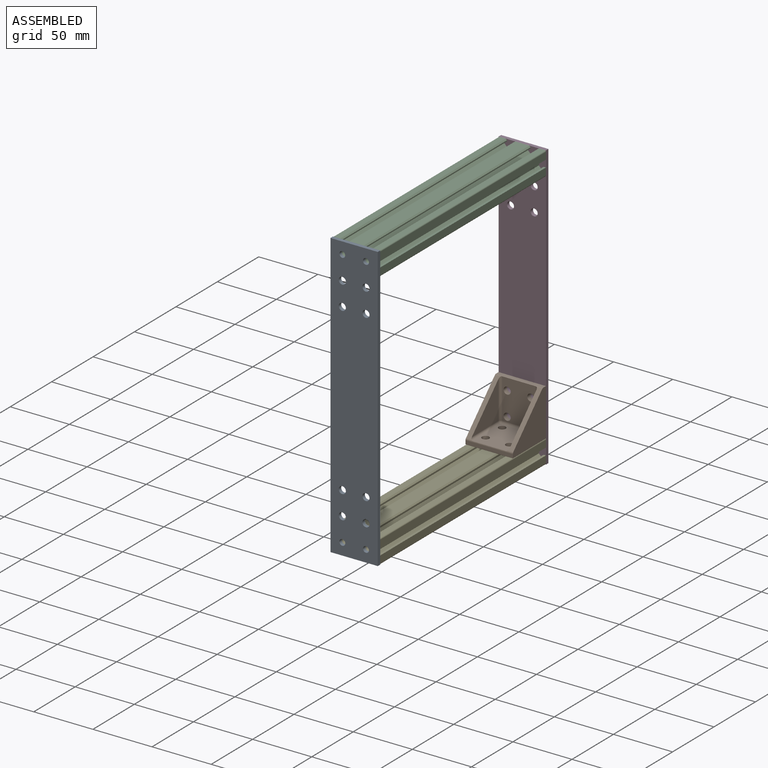
[diagram: assembled view]
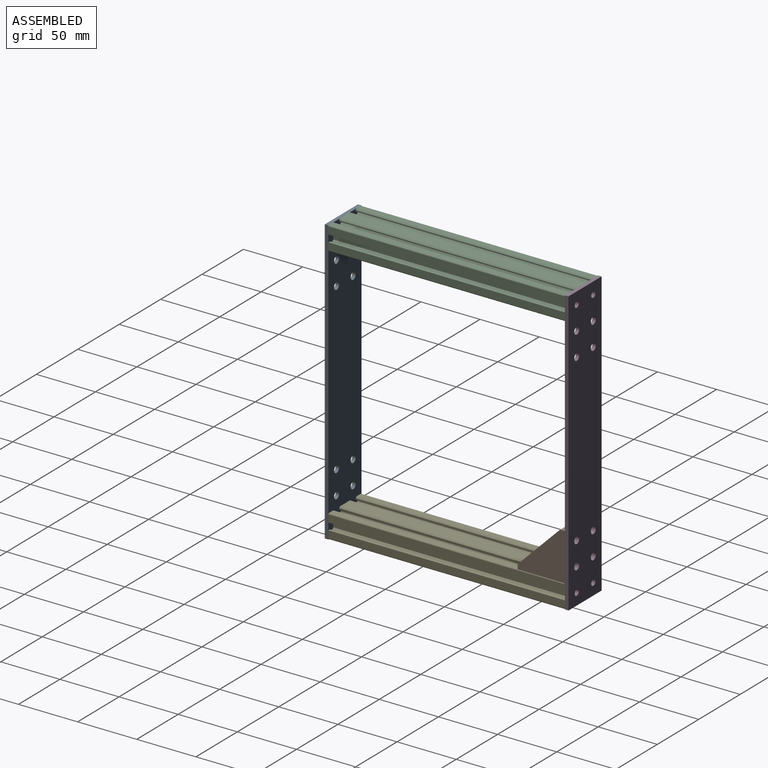
[diagram: assembled view, second angle]
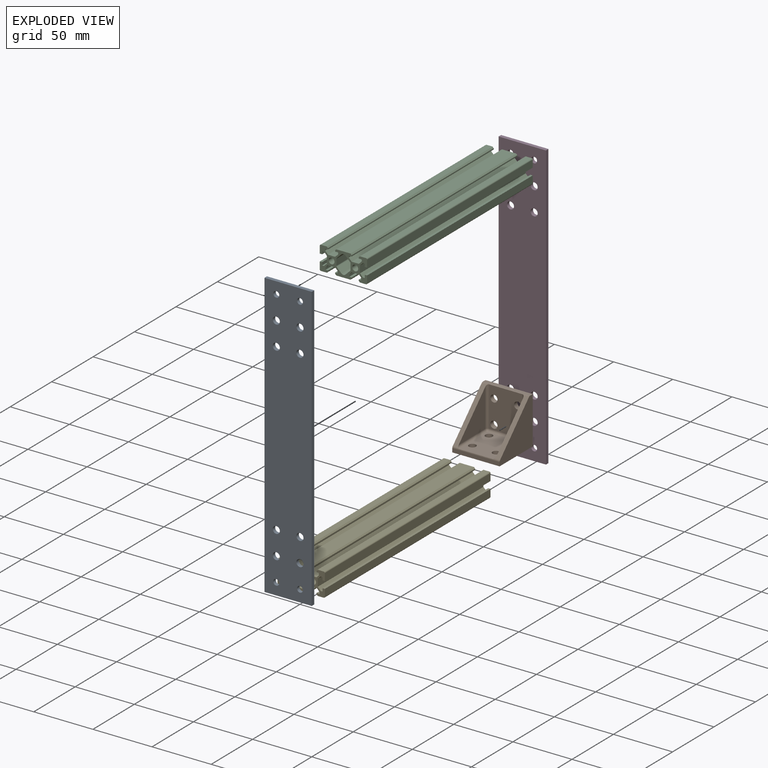
[diagram: exploded view]
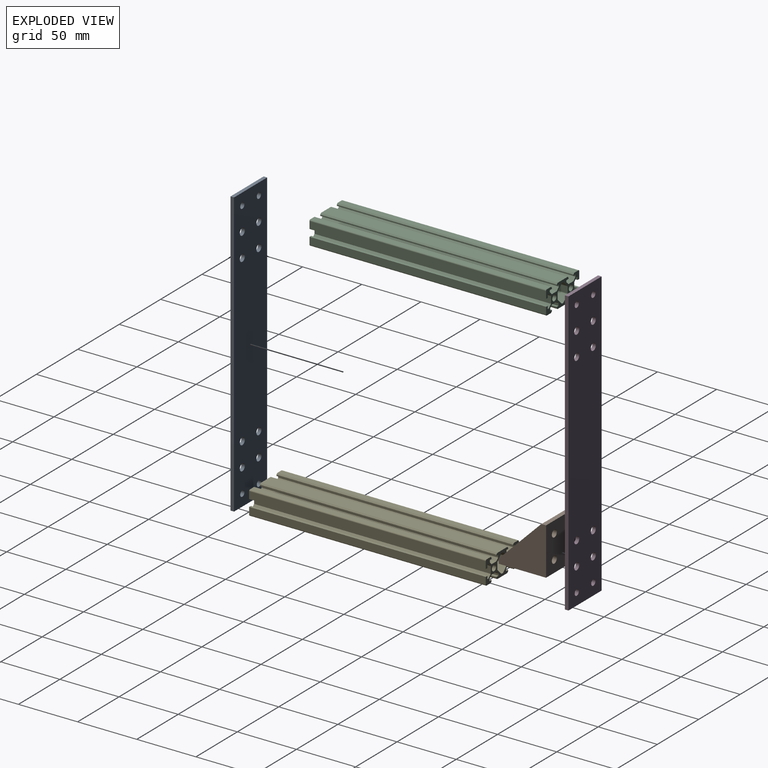
[diagram: exploded view, second angle]
ASSEMBLY  parts=5 mates=6
PART A: 18 faces, bbox 240x3x40 mm
  f0: plane 240x40mm, normal (0,-1,0), area 9295.3mm2, adj f1,f2,f3,f4,f6,f7,f8,f9
  f1: plane 240x3mm, normal (0,0,-1), area 720mm2, adj f0,f2,f4,f5
  f2: plane 40x3mm, normal (1,0,0), area 120mm2, adj f0,f1,f3,f5
  f3: plane 240x3mm, normal (0,0,1), area 720mm2, adj f0,f2,f4,f5
  f4: plane 40x3mm, normal (-1,0,0), area 120mm2, adj f0,f1,f3,f5
  f5: plane 240x40mm, normal (0,1,0), area 9295.3mm2, adj f1,f2,f3,f4,f6,f7,f8,f9
  f6: cylinder r=2.5mm len=5mm, axis (0,-1,0), area 47.1mm2, adj f0,f5
  f7: cylinder r=2.5mm len=5mm, axis (0,-1,0), area 47.1mm2, adj f0,f5
  f8: cylinder r=2.5mm len=5mm, axis (0,-1,0), area 47.1mm2, adj f0,f5
  f9: cylinder r=2.5mm len=5mm, axis (0,-1,0), area 47.1mm2, adj f0,f5
  f10: cylinder r=3mm len=6mm, axis (0,-1,0), area 56.5mm2, adj f0,f5
  f11: cylinder r=3mm len=6mm, axis (0,-1,0), area 56.5mm2, adj f0,f5
  f12: cylinder r=3mm len=6mm, axis (0,-1,0), area 56.5mm2, adj f0,f5
  f13: cylinder r=3mm len=6mm, axis (0,-1,0), area 56.5mm2, adj f0,f5
  f14: cylinder r=3mm len=6mm, axis (0,-1,0), area 56.5mm2, adj f0,f5
  f15: cylinder r=3mm len=6mm, axis (0,-1,0), area 56.5mm2, adj f0,f5
  f16: cylinder r=3mm len=6mm, axis (0,-1,0), area 56.5mm2, adj f0,f5
  f17: cylinder r=3mm len=6mm, axis (0,-1,0), area 56.5mm2, adj f0,f5
PART B: 29 faces, bbox 40x40x40 mm
  f0: plane 34.83x34.83mm, normal (0.71,0,0.71), area 197.7mm2, adj f6,f11,f12,f13,f14,f15
  f1: plane 40x3.17mm, normal (1,0,0), area 126.9mm2, adj f5,f6,f7,f12
  f2: plane 34.83x34.83mm, normal (0.71,0,0.71), area 197.7mm2, adj f7,f10,f12,f13,f17,f20
  f3: plane 40x3.17mm, normal (0,0,1), area 126.9mm2, adj f4,f6,f7,f13
  f4: plane 40x40mm, normal (-1,0,0), area 1486.9mm2, adj f3,f5,f6,f7,f25,f26,f27,f28
  f5: plane 40x40mm, normal (0,0,-1), area 1486.9mm2, adj f1,f4,f6,f7,f21,f22,f23,f24
  f6: plane 40x40mm, normal (0,-1,0), area 951.8mm2, adj f0,f1,f3,f4,f5,f12,f13
  f7: plane 40x40mm, normal (0,1,0), area 951.8mm2, adj f1,f2,f3,f4,f5,f12,f13
  f8: plane 33.82x28mm, normal (1,0,0), area 833.9mm2, adj f13,f15,f18,f20,f25,f26,f27,f28
  f9: plane 33.82x28mm, normal (0,0,1), area 833.9mm2, adj f12,f14,f17,f18,f21,f22,f23,f24
  f10: plane 32x32mm, normal (0,-1,0), area 512mm2, adj f2,f17,f20
  f11: plane 32x32mm, normal (0,1,0), area 512mm2, adj f0,f14,f15
  f12: cylinder r=2mm len=40mm, axis (0,1,0), area 41.3mm2, adj f0,f1,f2,f6,f7,f9,f14,f17
  f13: cylinder r=2mm len=40mm, axis (0,-1,0), area 41.3mm2, adj f0,f2,f3,f6,f7,f8,f15,f20
  f14: cylinder r=2mm len=33.82mm, axis (-1,0,0), area 104.4mm2, adj f0,f9,f11,f12,f16
  f15: cylinder r=2mm len=33.82mm, axis (0,0,1), area 104.4mm2, adj f0,f8,f11,f13,f16
  f16: sphere r=2mm, area 6.3mm2, adj f14,f15,f18
  f17: cylinder r=2mm len=33.82mm, axis (1,0,0), area 104.4mm2, adj f2,f9,f10,f12,f19
  f18: cylinder r=2mm len=28mm, axis (0,1,0), area 88mm2, adj f8,f9,f16,f19
  f19: sphere r=2mm, area 6.3mm2, adj f17,f18,f20
  f20: cylinder r=2mm len=33.82mm, axis (0,0,-1), area 104.4mm2, adj f2,f8,f10,f13,f19
  f21: cylinder r=3mm len=6mm, axis (0,0,-1), area 75.4mm2, adj f5,f9
  f22: cylinder r=3mm len=6mm, axis (0,0,-1), area 75.4mm2, adj f5,f9
  f23: cylinder r=3mm len=6mm, axis (0,0,-1), area 75.4mm2, adj f5,f9
  f24: cylinder r=3mm len=6mm, axis (0,0,-1), area 75.4mm2, adj f5,f9
  f25: cylinder r=3mm len=6mm, axis (-1,0,0), area 75.4mm2, adj f4,f8
  f26: cylinder r=3mm len=6mm, axis (-1,0,0), area 75.4mm2, adj f4,f8
  f27: cylinder r=3mm len=6mm, axis (-1,0,0), area 75.4mm2, adj f4,f8
  f28: cylinder r=3mm len=6mm, axis (-1,0,0), area 75.4mm2, adj f4,f8
PART C: 92 faces, bbox 40x200x20 mm
  f0: plane 200x6mm, normal (1,0,0), area 1200mm2, adj f3,f4,f57,f81
  f1: plane 200x6mm, normal (-1,0,0), area 1200mm2, adj f3,f4,f49,f82
  f2: plane 200x5mm, normal (0,0,-1), area 1000mm2, adj f3,f4,f41,f80
  f3: plane 40x20mm, normal (0,1,0), area 319.6mm2, adj f0,f1,f2,f5,f6,f7,f8,f9
  f4: plane 40x20mm, normal (0,-1,0), area 319.6mm2, adj f0,f1,f2,f5,f6,f7,f8,f9
  f5: plane 200x12mm, normal (0,0,-1), area 2400mm2, adj f3,f4,f39,f40
  f6: plane 200x5mm, normal (0,0,1), area 1000mm2, adj f3,f4,f36,f81
  f7: plane 200x12mm, normal (0,0,1), area 2400mm2, adj f3,f4,f37,f42
  f8: plane 200x5mm, normal (0,0,-1), area 1000mm2, adj f3,f4,f38,f83
  f9: plane 200x6mm, normal (1,0,0), area 1200mm2, adj f3,f4,f58,f80
  f10: plane 200x5mm, normal (0,0,1), area 1000mm2, adj f3,f4,f43,f82
  f11: plane 200x6mm, normal (-1,0,0), area 1200mm2, adj f3,f4,f48,f83
  f12: plane 200x1mm, normal (-1,0,0), area 200mm2, adj f3,f4,f18,f37
  f13: plane 200x1mm, normal (1,0,0), area 200mm2, adj f3,f4,f14,f43
  f14: plane 200x2.5mm, normal (0,0,-1), area 500mm2, adj f3,f4,f13,f15
  f15: plane 200x1.5mm, normal (1,0,0), area 300mm2, adj f3,f4,f14,f35
  f16: plane 200x6mm, normal (0,0,1), area 1200mm2, adj f3,f4,f34,f35
  f17: plane 200x1.5mm, normal (-1,0,0), area 300mm2, adj f3,f4,f18,f34
  f18: plane 200x2.5mm, normal (0,0,-1), area 500mm2, adj f3,f4,f12,f17
  f19: plane 200x1mm, normal (1,0,0), area 200mm2, adj f3,f4,f21,f42
  f20: plane 200x1mm, normal (-1,0,0), area 200mm2, adj f3,f4,f25,f36
  f21: plane 200x2.5mm, normal (0,0,-1), area 500mm2, adj f3,f4,f19,f22
  f22: plane 200x1.5mm, normal (1,0,0), area 300mm2, adj f3,f4,f21,f32
  f23: plane 200x6mm, normal (0,0,1), area 1200mm2, adj f3,f4,f32,f33
  f24: plane 200x1.5mm, normal (-1,0,0), area 300mm2, adj f3,f4,f25,f33
  f25: plane 200x2.5mm, normal (0,0,-1), area 500mm2, adj f3,f4,f20,f24
  f26: plane 200x1mm, normal (-1,0,0), area 200mm2, adj f3,f4,f39,f88
  f27: plane 200x1mm, normal (1,0,0), area 200mm2, adj f3,f4,f38,f91
  f28: plane 200x6mm, normal (0,0,-1), area 1200mm2, adj f3,f4,f46,f47
  f29: plane 200x1mm, normal (1,0,0), area 200mm2, adj f3,f4,f40,f87
  f30: plane 200x1mm, normal (-1,0,0), area 200mm2, adj f3,f4,f41,f84
  f31: plane 200x6mm, normal (0,0,-1), area 1200mm2, adj f3,f4,f44,f45
  f32: plane 200x2.5mm, normal (0.71,0,0.71), area 707.1mm2, adj f3,f4,f22,f23
  f33: plane 200x2.5mm, normal (-0.71,0,0.71), area 707.1mm2, adj f3,f4,f23,f24
  f34: plane 200x2.5mm, normal (-0.71,0,0.71), area 707.1mm2, adj f3,f4,f16,f17
  f35: plane 200x2.5mm, normal (0.71,0,0.71), area 707.1mm2, adj f3,f4,f15,f16
  f36: plane 200x1mm, normal (-0.71,0,0.71), area 282.8mm2, adj f3,f4,f6,f20
  f37: plane 200x1mm, normal (-0.71,0,0.71), area 282.8mm2, adj f3,f4,f7,f12
  f38: plane 200x1mm, normal (0.71,0,-0.71), area 282.8mm2, adj f3,f4,f8,f27
  f39: plane 200x1mm, normal (-0.71,0,-0.71), area 282.8mm2, adj f3,f4,f5,f26
  f40: plane 200x1mm, normal (0.71,0,-0.71), area 282.8mm2, adj f3,f4,f5,f29
  f41: plane 200x1mm, normal (-0.71,0,-0.71), area 282.8mm2, adj f2,f3,f4,f30
  f42: plane 200x1mm, normal (0.71,0,0.71), area 282.8mm2, adj f3,f4,f7,f19
  f43: plane 200x1mm, normal (0.71,0,0.71), area 282.8mm2, adj f3,f4,f10,f13
  f44: plane 200x2mm, normal (0.71,0,-0.71), area 565.7mm2, adj f3,f4,f31,f86
  f45: plane 200x2mm, normal (-0.71,0,-0.71), area 565.7mm2, adj f3,f4,f31,f85
  f46: plane 200x2mm, normal (-0.71,0,-0.71), area 565.7mm2, adj f3,f4,f28,f89
  f47: plane 200x2mm, normal (0.71,0,-0.71), area 565.7mm2, adj f3,f4,f28,f90
  f48: plane 200x2mm, normal (0,0,1), area 400mm2, adj f3,f4,f11,f50
  f49: plane 200x2mm, normal (0,0,-1), area 400mm2, adj f1,f3,f4,f56
  f50: plane 200x2.5mm, normal (1,0,0), area 500mm2, adj f3,f4,f48,f51
  f51: plane 200x1.5mm, normal (0,0,1), area 300mm2, adj f3,f4,f50,f52
  f52: plane 200x2.5mm, normal (-0.71,0,0.71), area 707.1mm2, adj f3,f4,f51,f53
  f53: plane 200x6mm, normal (-1,0,0), area 1200mm2, adj f3,f4,f52,f54
  f54: plane 200x2.5mm, normal (-0.71,0,-0.71), area 707.1mm2, adj f3,f4,f53,f55
  f55: plane 200x1.5mm, normal (0,0,-1), area 300mm2, adj f3,f4,f54,f56
  f56: plane 200x2.5mm, normal (1,0,0), area 500mm2, adj f3,f4,f49,f55
  f57: plane 200x2mm, normal (0,0,-1), area 400mm2, adj f0,f3,f4,f59
  f58: plane 200x2mm, normal (0,0,1), area 400mm2, adj f3,f4,f9,f65
  f59: plane 200x2.5mm, normal (-1,0,0), area 500mm2, adj f3,f4,f57,f60
  f60: plane 200x1.5mm, normal (0,0,-1), area 300mm2, adj f3,f4,f59,f61
  f61: plane 200x2.5mm, normal (0.71,0,-0.71), area 707.1mm2, adj f3,f4,f60,f62
  f62: plane 200x6mm, normal (1,0,0), area 1200mm2, adj f3,f4,f61,f63
  f63: plane 200x2.5mm, normal (0.71,0,0.71), area 707.1mm2, adj f3,f4,f62,f64
  f64: plane 200x1.5mm, normal (0,0,1), area 300mm2, adj f3,f4,f63,f65
  f65: plane 200x2.5mm, normal (-1,0,0), area 500mm2, adj f3,f4,f58,f64
  f66: plane 200x5.17mm, normal (-1,0,0), area 1034.3mm2, adj f3,f4,f76,f79
  f67: plane 200x3.94mm, normal (-0.71,0,-0.71), area 1114.2mm2, adj f3,f4,f72,f76
  f68: plane 200x3.94mm, normal (0.71,0,-0.71), area 1114.2mm2, adj f3,f4,f72,f77
  f69: plane 200x5.17mm, normal (1,0,0), area 1034.3mm2, adj f3,f4,f77,f78
  f70: plane 200x3.94mm, normal (0.71,0,0.71), area 1114.2mm2, adj f3,f4,f73,f78
  f71: plane 200x3.94mm, normal (-0.71,0,0.71), area 1114.2mm2, adj f3,f4,f73,f79
  f72: cylinder r=2.5mm len=200mm, axis (0,1,0), area 785.4mm2, adj f3,f4,f67,f68
  f73: cylinder r=2.5mm len=200mm, axis (0,1,0), area 785.4mm2, adj f3,f4,f70,f71
  f74: cylinder r=2.5mm len=200mm, axis (0,-1,0), area 3141.6mm2, adj f3,f4
  f75: cylinder r=2.5mm len=200mm, axis (0,-1,0), area 3141.6mm2, adj f3,f4
  f76: cylinder r=1mm len=200mm, axis (0,1,0), area 157.1mm2, adj f3,f4,f66,f67
  f77: cylinder r=1mm len=200mm, axis (0,1,0), area 157.1mm2, adj f3,f4,f68,f69
  f78: cylinder r=1mm len=200mm, axis (0,1,0), area 157.1mm2, adj f3,f4,f69,f70
  f79: cylinder r=1mm len=200mm, axis (0,1,0), area 157.1mm2, adj f3,f4,f66,f71
  f80: cylinder r=1mm len=200mm, axis (0,-1,0), area 314.2mm2, adj f2,f3,f4,f9
  f81: cylinder r=1mm len=200mm, axis (0,1,0), area 314.2mm2, adj f0,f3,f4,f6
  f82: cylinder r=1mm len=200mm, axis (0,-1,0), area 314.2mm2, adj f1,f3,f4,f10
  f83: cylinder r=1mm len=200mm, axis (0,1,0), area 314.2mm2, adj f3,f4,f8,f11
  f84: plane 200x2mm, normal (0,0,1), area 400mm2, adj f3,f4,f30,f85
  f85: plane 200x2mm, normal (-1,0,0), area 400mm2, adj f3,f4,f45,f84
  f86: plane 200x2mm, normal (1,0,0), area 400mm2, adj f3,f4,f44,f87
  f87: plane 200x2mm, normal (0,0,1), area 400mm2, adj f3,f4,f29,f86
  f88: plane 200x2mm, normal (0,0,1), area 400mm2, adj f3,f4,f26,f89
  f89: plane 200x2mm, normal (-1,0,0), area 400mm2, adj f3,f4,f46,f88
  f90: plane 200x2mm, normal (1,0,0), area 400mm2, adj f3,f4,f47,f91
  f91: plane 200x2mm, normal (0,0,1), area 400mm2, adj f3,f4,f27,f90
PART D: same geometry as A
PART E: same geometry as C
PLACE A rot(axis=(0,-1,0),90deg) t=(44.14,-523.2,214.35)mm
PLACE B rot(axis=(0,0,-1),90deg) t=(44.14,-323.2,114.35)mm
PLACE C t=(44.14,-423.2,324.35)mm
PLACE D rot(axis=(0,-1,0),90deg) t=(44.14,-320.2,214.35)mm
PLACE E rot(axis=(1,0,0),180deg) t=(44.14,-423.2,104.35)mm
MATE revolute C.f75 <-> A.f8  axis (0,-1,0) through (54.14,-523.2,324.35)mm
MATE revolute D.f12 <-> B.f25  axis (0,-1,0) through (54.14,-323.2,144.35)mm
MATE revolute E.f75 <-> D.f6  axis (0,1,0) through (54.14,-323.2,104.35)mm
MATE revolute E.f74 <-> D.f7  axis (0,1,0) through (34.14,-323.2,104.35)mm
MATE revolute E.f74 <-> A.f7  axis (0,1,0) through (34.14,-523.2,104.35)mm
MATE revolute D.f8 <-> C.f75  axis (0,-1,0) through (54.14,-323.2,324.35)mm
